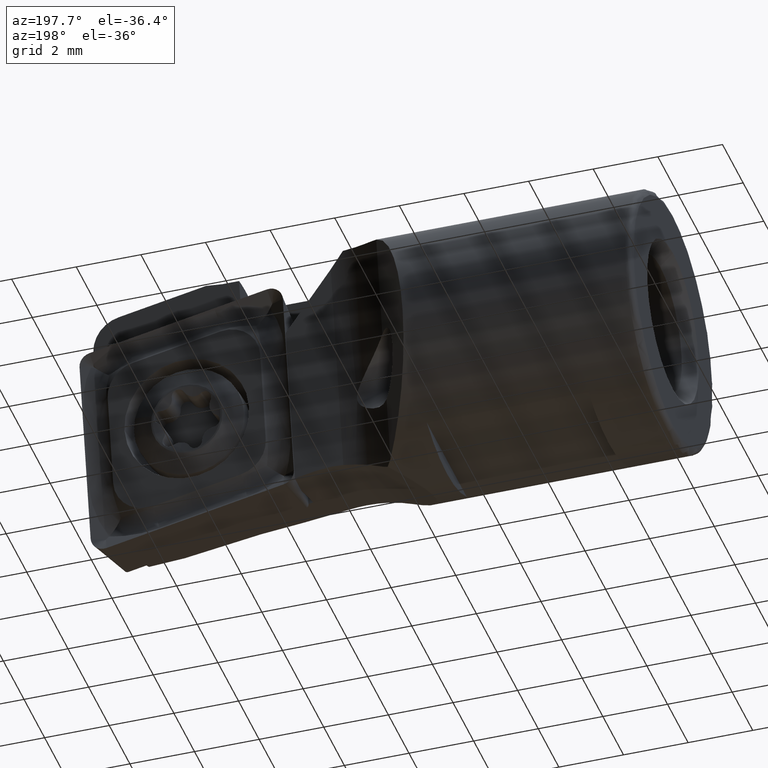
[diagram: clean part render]
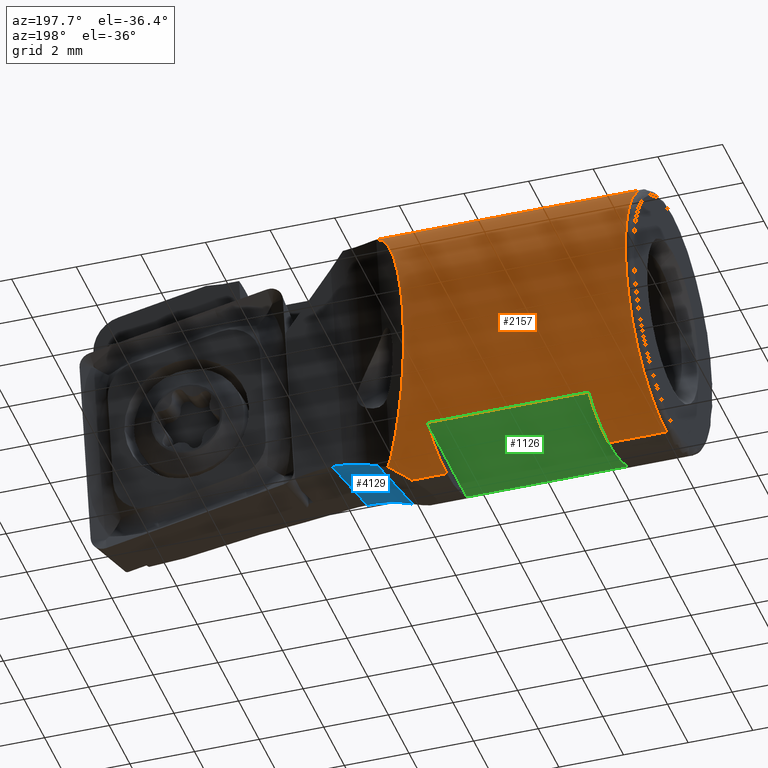
[diagram: same view with three faces highlighted in distinct colors, each labeled with its STEP entity id]
A machine part, auxiliary view with three faces highlighted in distinct colors.
Their STEP definitions:

[orange] entity #2157 — the highlighted cylindrical surface (partial cylindrical patch) has radius 4 mm, axis along (-1, -0, -0).
#5 = VECTOR ( 'NONE', #1112, 1000.000000000000000 ) ;
#50 = CARTESIAN_POINT ( 'NONE',  ( -8.541488726290026500, 1.584551225564466900, 8.048252546757066000 ) ) ;
#72 = ORIENTED_EDGE ( 'NONE', *, *, #2455, .F. ) ;
#90 = DIRECTION ( 'NONE',  ( -1.000000000000000000, -0.0000000000000000000, -0.0000000000000000000 ) ) ;
#100 = CYLINDRICAL_SURFACE ( 'NONE', #2643, 4.000000000000000000 ) ;
#119 = EDGE_CURVE ( 'NONE', #3015, #1419, #3975, .T. ) ;
#125 = CARTESIAN_POINT ( 'NONE',  ( -9.528519790332779800, 0.9244055286453619600, 0.4821495213263568000 ) ) ;
#163 = ORIENTED_EDGE ( 'NONE', *, *, #2752, .T. ) ;
#169 = EDGE_CURVE ( 'NONE', #465, #3715, #443, .T. ) ;
#173 = LINE ( 'NONE', #933, #1978 ) ;
#196 = AXIS2_PLACEMENT_3D ( 'NONE', #462, #2629, #2276 ) ;
#215 = EDGE_CURVE ( 'NONE', #755, #3439, #2554, .T. ) ;
#292 = EDGE_CURVE ( 'NONE', #922, #520, #1542, .T. ) ;
#304 = ORIENTED_EDGE ( 'NONE', *, *, #2400, .T. ) ;
#334 = CARTESIAN_POINT ( 'NONE',  ( -21.56769568915706300, 4.898587196589411800E-016, 0.3750000000000012200 ) ) ;
#338 = CIRCLE ( 'NONE', #1293, 3.999999999999999100 ) ;
#348 = ORIENTED_EDGE ( 'NONE', *, *, #3585, .T. ) ;
#351 = CARTESIAN_POINT ( 'NONE',  ( -9.577350269189628000, 1.015196035705866000, 0.5059720847366469000 ) ) ;
#413 = CARTESIAN_POINT ( 'NONE',  ( -8.265444257785347300, 1.513703998275543400, 8.077526192426548200 ) ) ;
#443 = B_SPLINE_CURVE_WITH_KNOTS ( 'NONE', 3,
 ( #413, #2584, #50, #771, #3325, #1149, #3682, #1519 ),
 .UNSPECIFIED., .F., .F.,
 ( 4, 2, 2, 4 ),
 ( 0.0004218379646759580900, 0.0008470039615060198000, 0.001272169958336081400, 0.002122501951996204700 ),
 .UNSPECIFIED. ) ;
#462 = CARTESIAN_POINT ( 'NONE',  ( -16.00000000000000000, 0.0000000000000000000, 4.375000000000000000 ) ) ;
#465 = VERTEX_POINT ( 'NONE', #2935 ) ;
#488 = EDGE_CURVE ( 'NONE', #4652, #465, #4565, .T. ) ;
#520 = VERTEX_POINT ( 'NONE', #2880 ) ;
#543 = DIRECTION ( 'NONE',  ( 0.0000000000000000000, 0.0000000000000000000, 1.000000000000000000 ) ) ;
#558 = ORIENTED_EDGE ( 'NONE', *, *, #4132, .F. ) ;
#568 = ORIENTED_EDGE ( 'NONE', *, *, #3528, .F. ) ;
#648 = CARTESIAN_POINT ( 'NONE',  ( -11.00000000000000000, 1.936491673103706700, 0.8750000000000007800 ) ) ;
#669 = ORIENTED_EDGE ( 'NONE', *, *, #215, .T. ) ;
#695 = DIRECTION ( 'NONE',  ( 1.000000000000000000, 0.0000000000000000000, 0.0000000000000000000 ) ) ;
#704 = DIRECTION ( 'NONE',  ( -1.000000000000000000, -0.0000000000000000000, -0.0000000000000000000 ) ) ;
#755 = VERTEX_POINT ( 'NONE', #4095 ) ;
#763 = EDGE_CURVE ( 'NONE', #1343, #755, #3198, .T. ) ;
#771 = CARTESIAN_POINT ( 'NONE',  ( -8.799042644892562500, 1.693812548307690200, 7.999166926328108200 ) ) ;
#827 = CARTESIAN_POINT ( 'NONE',  ( -21.56769568915706300, 1.936491673103708700, 0.8750000000000016700 ) ) ;
#922 = VERTEX_POINT ( 'NONE', #1630 ) ;
#933 = CARTESIAN_POINT ( 'NONE',  ( -21.56769568915706300, 0.0000000000000000000, 8.375000000000000000 ) ) ;
#994 = CARTESIAN_POINT ( 'NONE',  ( -11.00000000000000000, 4.898587196589411800E-016, 0.3750000000000012200 ) ) ;
#1036 = CARTESIAN_POINT ( 'NONE',  ( -11.00000000000000000, 0.0000000000000000000, 4.375000000000000000 ) ) ;
#1059 = CARTESIAN_POINT ( 'NONE',  ( -17.80000000000000100, 0.0000000000000000000, 4.375000000000000000 ) ) ;
#1063 = CARTESIAN_POINT ( 'NONE',  ( -9.617552693066853600, 0.5061121209419069400, 0.3990501233644597700 ) ) ;
#1070 = EDGE_CURVE ( 'NONE', #4652, #2286, #173, .T. ) ;
#1094 =( BOUNDED_CURVE ( )  B_SPLINE_CURVE ( 3, ( #1779, #3240, #2520, #351 ),
 .UNSPECIFIED., .F., .F. ) 
 B_SPLINE_CURVE_WITH_KNOTS ( ( 4, 4 ),
 ( 5.160981052338680500, 7.405389562020491900 ),
 .UNSPECIFIED. ) 
 CURVE ( )  GEOMETRIC_REPRESENTATION_ITEM ( )  RATIONAL_B_SPLINE_CURVE ( ( 1.000000000000000000, 0.6224648924620673800, 0.6224648924620673800, 1.000000000000000000 ) ) 
 REPRESENTATION_ITEM ( '' )  );
#1110 = LINE ( 'NONE', #3961, #1969 ) ;
#1112 = DIRECTION ( 'NONE',  ( -1.000000000000000000, -0.0000000000000000000, -0.0000000000000000000 ) ) ;
#1135 = CARTESIAN_POINT ( 'NONE',  ( -9.577350269189628000, 2.390636740694583700, 7.582001087315246600 ) ) ;
#1149 = CARTESIAN_POINT ( 'NONE',  ( -9.260942746708954200, 1.993253258803602700, 7.847394295896007700 ) ) ;
#1165 = CARTESIAN_POINT ( 'NONE',  ( -11.00000000000000000, 0.0000000000000000000, 4.375000000000000000 ) ) ;
#1168 = VERTEX_POINT ( 'NONE', #2465 ) ;
#1174 = VECTOR ( 'NONE', #1768, 1000.000000000000000 ) ;
#1182 = VERTEX_POINT ( 'NONE', #1392 ) ;
#1217 = CARTESIAN_POINT ( 'NONE',  ( -9.411353647752420700, 0.7551785182264511000, 0.4469336301929299800 ) ) ;
#1235 = CIRCLE ( 'NONE', #2549, 3.999999999999999100 ) ;
#1243 = VECTOR ( 'NONE', #3779, 1000.000000000000000 ) ;
#1293 = AXIS2_PLACEMENT_3D ( 'NONE', #1165, #3695, #1532 ) ;
#1294 = LINE ( 'NONE', #334, #1174 ) ;
#1343 = VERTEX_POINT ( 'NONE', #2330 ) ;
#1392 = CARTESIAN_POINT ( 'NONE',  ( -11.00000000000000000, 1.936491673103708700, 7.874999999999998200 ) ) ;
#1418 = DIRECTION ( 'NONE',  ( 0.0000000000000000000, 0.0000000000000000000, 1.000000000000000000 ) ) ;
#1419 = VERTEX_POINT ( 'NONE', #3084 ) ;
#1433 = DIRECTION ( 'NONE',  ( 0.0000000000000000000, 0.0000000000000000000, -1.000000000000000000 ) ) ;
#1462 = CARTESIAN_POINT ( 'NONE',  ( -8.265444257785347300, 1.513703998275543400, 8.077526192426548200 ) ) ;
#1511 = CARTESIAN_POINT ( 'NONE',  ( -9.786165180844827600, 0.2536274836891619900, 0.3750000000000012800 ) ) ;
#1519 = CARTESIAN_POINT ( 'NONE',  ( -9.577350269189628000, 2.390636740694583700, 7.582001087315246600 ) ) ;
#1532 = DIRECTION ( 'NONE',  ( 0.0000000000000000000, 0.0000000000000000000, -1.000000000000000000 ) ) ;
#1542 = B_SPLINE_CURVE_WITH_KNOTS ( 'NONE', 3,
 ( #3389, #125, #4460, #1217 ),
 .UNSPECIFIED., .F., .F.,
 ( 4, 4 ),
 ( 8.940560153363745000E-019, 0.0003129144341277536200 ),
 .UNSPECIFIED. ) ;
#1563 = CIRCLE ( 'NONE', #1924, 4.000000000000000000 ) ;
#1599 = EDGE_CURVE ( 'NONE', #2339, #1343, #2199, .T. ) ;
#1630 = CARTESIAN_POINT ( 'NONE',  ( -9.577350269189628000, 1.015196035705866000, 0.5059720847366469000 ) ) ;
#1768 = DIRECTION ( 'NONE',  ( -1.000000000000000000, -0.0000000000000000000, -0.0000000000000000000 ) ) ;
#1779 = CARTESIAN_POINT ( 'NONE',  ( -9.577350269189628000, 2.390636740694583700, 7.582001087315246600 ) ) ;
#1794 = CARTESIAN_POINT ( 'NONE',  ( -9.411353647752420700, 0.7551785182264511000, 0.4469336301929299800 ) ) ;
#1834 = CARTESIAN_POINT ( 'NONE',  ( -8.268112625381736100, 0.0000000000000000000, 8.375000000000000000 ) ) ;
#1924 = AXIS2_PLACEMENT_3D ( 'NONE', #1036, #3589, #1418 ) ;
#1926 = EDGE_CURVE ( 'NONE', #4411, #2339, #338, .T. ) ;
#1969 = VECTOR ( 'NONE', #704, 1000.000000000000000 ) ;
#1978 = VECTOR ( 'NONE', #3474, 1000.000000000000000 ) ;
#1999 = DIRECTION ( 'NONE',  ( -1.000000000000000000, -0.0000000000000000000, -0.0000000000000000000 ) ) ;
#2085 = VERTEX_POINT ( 'NONE', #2303 ) ;
#2116 = ORIENTED_EDGE ( 'NONE', *, *, #169, .T. ) ;
#2140 = FACE_OUTER_BOUND ( 'NONE', #3571, .T. ) ;
#2157 = ADVANCED_FACE ( 'NONE', ( #2140 ), #100, .T. ) ;
#2188 = CARTESIAN_POINT ( 'NONE',  ( -8.351486257681777700, 0.5207344948550419700, 8.375000000000000000 ) ) ;
#2189 = ORIENTED_EDGE ( 'NONE', *, *, #1070, .F. ) ;
#2199 = LINE ( 'NONE', #827, #1243 ) ;
#2276 = DIRECTION ( 'NONE',  ( 0.0000000000000000000, 0.0000000000000000000, 1.000000000000000000 ) ) ;
#2286 = VERTEX_POINT ( 'NONE', #4254 ) ;
#2303 = CARTESIAN_POINT ( 'NONE',  ( -16.00000000000000000, 1.936491673103705000, 7.875000000000000000 ) ) ;
#2330 = CARTESIAN_POINT ( 'NONE',  ( -16.00000000000000000, 1.936491673103708700, 0.8750000000000025500 ) ) ;
#2339 = VERTEX_POINT ( 'NONE', #648 ) ;
#2400 = EDGE_CURVE ( 'NONE', #3439, #1419, #1235, .T. ) ;
#2445 = AXIS2_PLACEMENT_3D ( 'NONE', #2864, #695, #3241 ) ;
#2455 = EDGE_CURVE ( 'NONE', #1182, #2085, #1110, .T. ) ;
#2465 = CARTESIAN_POINT ( 'NONE',  ( -9.915671574023639000, 4.898587196589411800E-016, 0.3750000000000012200 ) ) ;
#2475 = ORIENTED_EDGE ( 'NONE', *, *, #292, .T. ) ;
#2520 = CARTESIAN_POINT ( 'NONE',  ( -11.58551495070094700, 4.748976534355358900, 1.485680487839968500 ) ) ;
#2526 = CIRCLE ( 'NONE', #2445, 3.999999999999999100 ) ;
#2549 = AXIS2_PLACEMENT_3D ( 'NONE', #1059, #3602, #1433 ) ;
#2554 = LINE ( 'NONE', #4414, #3639 ) ;
#2567 = ORIENTED_EDGE ( 'NONE', *, *, #488, .T. ) ;
#2584 = CARTESIAN_POINT ( 'NONE',  ( -8.404043042440958900, 1.541808283071034200, 8.066036316041440600 ) ) ;
#2629 = DIRECTION ( 'NONE',  ( -1.000000000000000000, 0.0000000000000000000, 0.0000000000000000000 ) ) ;
#2643 = AXIS2_PLACEMENT_3D ( 'NONE', #4524, #1999, #543 ) ;
#2752 = EDGE_CURVE ( 'NONE', #1168, #4411, #1294, .T. ) ;
#2817 = ORIENTED_EDGE ( 'NONE', *, *, #4540, .T. ) ;
#2864 = CARTESIAN_POINT ( 'NONE',  ( -16.00000000000000000, 0.0000000000000000000, 4.375000000000000000 ) ) ;
#2880 = CARTESIAN_POINT ( 'NONE',  ( -9.411353647752420700, 0.7551785182264511000, 0.4469336301929299800 ) ) ;
#2935 = CARTESIAN_POINT ( 'NONE',  ( -8.265444257785347300, 1.513703998275543400, 8.077526192426548200 ) ) ;
#2987 = CARTESIAN_POINT ( 'NONE',  ( -16.00000000000000000, 0.0000000000000000000, 8.375000000000000000 ) ) ;
#3015 = VERTEX_POINT ( 'NONE', #2987 ) ;
#3084 = CARTESIAN_POINT ( 'NONE',  ( -17.80000000000000100, 0.0000000000000000000, 8.375000000000000000 ) ) ;
#3146 = ORIENTED_EDGE ( 'NONE', *, *, #119, .F. ) ;
#3198 = CIRCLE ( 'NONE', #196, 4.000000000000000000 ) ;
#3240 = CARTESIAN_POINT ( 'NONE',  ( -11.58551495070094700, 5.485532508111225200, 5.274932480612562800 ) ) ;
#3241 = DIRECTION ( 'NONE',  ( 0.0000000000000000000, 0.0000000000000000000, -1.000000000000000000 ) ) ;
#3290 = CARTESIAN_POINT ( 'NONE',  ( -21.56769568915706300, 0.0000000000000000000, 8.375000000000000000 ) ) ;
#3325 = CARTESIAN_POINT ( 'NONE',  ( -8.920310374971432300, 1.760273012824033400, 7.967921387297469200 ) ) ;
#3373 =( BOUNDED_CURVE ( )  B_SPLINE_CURVE ( 3, ( #1794, #1063, #1511, #4035 ),
 .UNSPECIFIED., .F., .F. ) 
 B_SPLINE_CURVE_WITH_KNOTS ( ( 4, 4 ),
 ( 5.793183065397907500, 5.983117622690821600 ),
 .UNSPECIFIED. ) 
 CURVE ( )  GEOMETRIC_REPRESENTATION_ITEM ( )  RATIONAL_B_SPLINE_CURVE ( ( 1.000000000000000000, 0.9969959973848441200, 0.9969959973848441200, 1.000000000000000000 ) ) 
 REPRESENTATION_ITEM ( '' )  );
#3389 = CARTESIAN_POINT ( 'NONE',  ( -9.577350269189628000, 1.015196035705866000, 0.5059720847366469000 ) ) ;
#3439 = VERTEX_POINT ( 'NONE', #3565 ) ;
#3474 = DIRECTION ( 'NONE',  ( -1.000000000000000000, -0.0000000000000000000, -0.0000000000000000000 ) ) ;
#3528 = EDGE_CURVE ( 'NONE', #2085, #3015, #2526, .T. ) ;
#3558 = ORIENTED_EDGE ( 'NONE', *, *, #1926, .T. ) ;
#3565 = CARTESIAN_POINT ( 'NONE',  ( -17.80000000000000100, 4.898587196589411800E-016, 0.3750000000000012200 ) ) ;
#3571 = EDGE_LOOP ( 'NONE', ( #348, #163, #3558, #3864, #4242, #669, #304, #3146, #568, #72, #558, #2189, #2567, #2116, #2817, #2475 ) ) ;
#3585 = EDGE_CURVE ( 'NONE', #520, #1168, #3373, .T. ) ;
#3589 = DIRECTION ( 'NONE',  ( -1.000000000000000000, 0.0000000000000000000, 0.0000000000000000000 ) ) ;
#3602 = DIRECTION ( 'NONE',  ( 1.000000000000000000, 0.0000000000000000000, 0.0000000000000000000 ) ) ;
#3639 = VECTOR ( 'NONE', #90, 1000.000000000000000 ) ;
#3682 = CARTESIAN_POINT ( 'NONE',  ( -9.444630180837521000, 2.186094332656958600, 7.734475808206065400 ) ) ;
#3695 = DIRECTION ( 'NONE',  ( 1.000000000000000000, 0.0000000000000000000, 0.0000000000000000000 ) ) ;
#3715 = VERTEX_POINT ( 'NONE', #1135 ) ;
#3779 = DIRECTION ( 'NONE',  ( -1.000000000000000000, -0.0000000000000000000, -0.0000000000000000000 ) ) ;
#3864 = ORIENTED_EDGE ( 'NONE', *, *, #1599, .T. ) ;
#3961 = CARTESIAN_POINT ( 'NONE',  ( -21.56769568915706300, 1.936491673103707000, 7.875000000000000000 ) ) ;
#3975 = LINE ( 'NONE', #3290, #5 ) ;
#3991 = CARTESIAN_POINT ( 'NONE',  ( -8.350585531792070500, 1.031695721650341700, 8.274585664152066800 ) ) ;
#4035 = CARTESIAN_POINT ( 'NONE',  ( -9.915671574023639000, 4.898587196589411800E-016, 0.3750000000000012200 ) ) ;
#4038 = CARTESIAN_POINT ( 'NONE',  ( -8.268112625381736100, 0.0000000000000000000, 8.375000000000000000 ) ) ;
#4095 = CARTESIAN_POINT ( 'NONE',  ( -16.00000000000000000, 4.898587196589411800E-016, 0.3750000000000012200 ) ) ;
#4132 = EDGE_CURVE ( 'NONE', #2286, #1182, #1563, .T. ) ;
#4242 = ORIENTED_EDGE ( 'NONE', *, *, #763, .T. ) ;
#4254 = CARTESIAN_POINT ( 'NONE',  ( -11.00000000000000000, 0.0000000000000000000, 8.375000000000000000 ) ) ;
#4411 = VERTEX_POINT ( 'NONE', #994 ) ;
#4414 = CARTESIAN_POINT ( 'NONE',  ( -21.56769568915706300, 4.898587196589411800E-016, 0.3750000000000012200 ) ) ;
#4460 = CARTESIAN_POINT ( 'NONE',  ( -9.473242200115283400, 0.8376301811229206500, 0.4627851252415028900 ) ) ;
#4524 = CARTESIAN_POINT ( 'NONE',  ( -21.56769568915706300, 0.0000000000000000000, 4.375000000000000000 ) ) ;
#4540 = EDGE_CURVE ( 'NONE', #3715, #922, #1094, .T. ) ;
#4565 =( BOUNDED_CURVE ( )  B_SPLINE_CURVE ( 3, ( #1834, #2188, #3991, #1462 ),
 .UNSPECIFIED., .F., .F. ) 
 B_SPLINE_CURVE_WITH_KNOTS ( ( 4, 4 ),
 ( 6.091199089460205900, 6.479294332532593800 ),
 .UNSPECIFIED. ) 
 CURVE ( )  GEOMETRIC_REPRESENTATION_ITEM ( )  RATIONAL_B_SPLINE_CURVE ( ( 1.000000000000000000, 0.9874878424529104400, 0.9874878424529104400, 1.000000000000000000 ) ) 
 REPRESENTATION_ITEM ( '' )  );
#4652 = VERTEX_POINT ( 'NONE', #4038 ) ;

[blue] entity #4129 — the highlighted cylindrical surface (partial cylindrical patch) has radius 3 mm, axis along (-0.0212, 0.9514, -0.3072).
#139 = ORIENTED_EDGE ( 'NONE', *, *, #4040, .F. ) ;
#221 = CARTESIAN_POINT ( 'NONE',  ( -8.358874925335340900, -3.423407742605312000, 2.305394279240663600 ) ) ;
#494 = CARTESIAN_POINT ( 'NONE',  ( -8.669041364874850300, 0.2668900151121900700, 1.028373566218727400 ) ) ;
#580 = CARTESIAN_POINT ( 'NONE',  ( -7.966441640982232300, -3.498674169502768500, 2.435911897533658400 ) ) ;
#599 = CYLINDRICAL_SURFACE ( 'NONE', #2169, 3.000000000000000900 ) ;
#702 = CARTESIAN_POINT ( 'NONE',  ( -7.491893882698366100, 0.1523970347639819200, 1.308099083633769800 ) ) ;
#832 = ORIENTED_EDGE ( 'NONE', *, *, #3488, .T. ) ;
#851 = CARTESIAN_POINT ( 'NONE',  ( -9.004468125924844900, 0.4296131927774733400, 0.7942210527995029500 ) ) ;
#867 = EDGE_CURVE ( 'NONE', #1398, #2941, #1668, .T. ) ;
#932 = CARTESIAN_POINT ( 'NONE',  ( -7.549714062706769400, -3.532154934245764500, 2.497799552396363400 ) ) ;
#939 = CARTESIAN_POINT ( 'NONE',  ( -7.610020444682503700, 0.1523970347639825900, 1.308099083633769600 ) ) ;
#956 = CARTESIAN_POINT ( 'NONE',  ( -7.348991014397428900, -6.272169957400439700, 3.382519644521909500 ) ) ;
#1120 =( BOUNDED_CURVE ( )  B_SPLINE_CURVE ( 3, ( #3492, #939, #3851, #1679 ),
 .UNSPECIFIED., .F., .F. ) 
 B_SPLINE_CURVE_WITH_KNOTS ( ( 4, 4 ),
 ( 3.314850609774584900, 3.432882151177352600 ),
 .UNSPECIFIED. ) 
 CURVE ( )  GEOMETRIC_REPRESENTATION_ITEM ( )  RATIONAL_B_SPLINE_CURVE ( ( 1.000000000000000000, 0.9988393831837819600, 0.9988393831837819600, 1.000000000000000000 ) ) 
 REPRESENTATION_ITEM ( '' )  );
#1216 = CARTESIAN_POINT ( 'NONE',  ( -8.275331019625474100, 0.1681885691532764300, 1.201670924136602400 ) ) ;
#1329 = ORIENTED_EDGE ( 'NONE', *, *, #4331, .F. ) ;
#1398 = VERTEX_POINT ( 'NONE', #2724 ) ;
#1658 = CARTESIAN_POINT ( 'NONE',  ( -8.823342738731785300, -3.251348050562967700, 2.042902535821336900 ) ) ;
#1668 = B_SPLINE_CURVE_WITH_KNOTS ( 'NONE', 3,
 ( #2663, #1936, #1216, #494, #3031, #851 ),
 .UNSPECIFIED., .F., .F.,
 ( 4, 2, 4 ),
 ( 0.0000000000000000000, 0.0006539594288406122900, 0.001307918857681224600 ),
 .UNSPECIFIED. ) ;
#1679 = CARTESIAN_POINT ( 'NONE',  ( -7.845299461620745000, 0.1483852832350356900, 1.287460411194449900 ) ) ;
#1784 = VERTEX_POINT ( 'NONE', #3166 ) ;
#1936 = CARTESIAN_POINT ( 'NONE',  ( -8.065543830806284100, 0.1433682371904365400, 1.261649946817399800 ) ) ;
#2130 = CARTESIAN_POINT ( 'NONE',  ( -8.851965596800941000, -6.426531309289220700, 3.007993146833780200 ) ) ;
#2169 = AXIS2_PLACEMENT_3D ( 'NONE', #3896, #3576, #3924 ) ;
#2370 = VECTOR ( 'NONE', #3519, 999.9999999999998900 ) ;
#2393 = CARTESIAN_POINT ( 'NONE',  ( -8.483809945331833200, -3.387999158555655900, 2.247185227918193200 ) ) ;
#2654 = ORIENTED_EDGE ( 'NONE', *, *, #3362, .F. ) ;
#2663 = CARTESIAN_POINT ( 'NONE',  ( -7.845299461620745000, 0.1483852832350356900, 1.287460411194449900 ) ) ;
#2724 = CARTESIAN_POINT ( 'NONE',  ( -7.845299461620745000, 0.1483852832350356900, 1.287460411194449900 ) ) ;
#2745 = CARTESIAN_POINT ( 'NONE',  ( -8.099830943349649800, -3.478687510297845600, 2.399722394895453800 ) ) ;
#2785 = B_SPLINE_CURVE_WITH_KNOTS ( 'NONE', 3,
 ( #3455, #1658, #4561, #2393, #221, #2745, #580, #3117, #932, #3483 ),
 .UNSPECIFIED., .F., .F.,
 ( 4, 2, 2, 2, 4 ),
 ( 4.336808689942017300E-019, 0.0004191388911381683500, 0.0008382777822763362800, 0.001257416673414504200, 0.001676555564552672100 ),
 .UNSPECIFIED. ) ;
#2941 = VERTEX_POINT ( 'NONE', #4055 ) ;
#3031 = CARTESIAN_POINT ( 'NONE',  ( -8.845798059145082000, 0.3388019592695452600, 0.9184658381367149000 ) ) ;
#3054 = CARTESIAN_POINT ( 'NONE',  ( -8.923929026965293300, -3.191229711960828400, 1.963350579893838700 ) ) ;
#3117 = CARTESIAN_POINT ( 'NONE',  ( -7.691912667579660300, -3.525470696640055300, 2.485068789451665900 ) ) ;
#3129 = VERTEX_POINT ( 'NONE', #3054 ) ;
#3166 = CARTESIAN_POINT ( 'NONE',  ( -7.409937690877574000, -3.532154934245763200, 2.497799552396363000 ) ) ;
#3362 = EDGE_CURVE ( 'NONE', #1784, #4160, #4052, .T. ) ;
#3455 = CARTESIAN_POINT ( 'NONE',  ( -8.923929026965293300, -3.191229711960828400, 1.963350579893838700 ) ) ;
#3483 = CARTESIAN_POINT ( 'NONE',  ( -7.409937690877574000, -3.532154934245763200, 2.497799552396363000 ) ) ;
#3488 = EDGE_CURVE ( 'NONE', #3129, #2941, #4575, .T. ) ;
#3492 = CARTESIAN_POINT ( 'NONE',  ( -7.491893882698366100, 0.1523970347639819200, 1.308099083633769800 ) ) ;
#3519 = DIRECTION ( 'NONE',  ( -0.02116238939576957400, 0.9514097932665446200, -0.3071995419130255100 ) ) ;
#3576 = DIRECTION ( 'NONE',  ( -0.02116238939576957700, 0.9514097932665446200, -0.3071995419130255600 ) ) ;
#3611 = VECTOR ( 'NONE', #3933, 999.9999999999998900 ) ;
#3851 = CARTESIAN_POINT ( 'NONE',  ( -7.727959186009763400, 0.1510582304154929300, 1.301211532346148800 ) ) ;
#3896 = CARTESIAN_POINT ( 'NONE',  ( -7.348991014397428900, -7.193975019944262300, 0.5276509213283924200 ) ) ;
#3924 = DIRECTION ( 'NONE',  ( 0.0000000000000000000, 0.3072683541812741800, 0.9516229077311720900 ) ) ;
#3933 = DIRECTION ( 'NONE',  ( -0.02116238939576957400, 0.9514097932665446200, -0.3071995419130255100 ) ) ;
#4040 = EDGE_CURVE ( 'NONE', #4160, #1398, #1120, .T. ) ;
#4052 = LINE ( 'NONE', #956, #2370 ) ;
#4055 = CARTESIAN_POINT ( 'NONE',  ( -9.004468125924844900, 0.4296131927774733400, 0.7942210527995029500 ) ) ;
#4129 = ADVANCED_FACE ( 'NONE', ( #4446 ), #599, .F. ) ;
#4160 = VERTEX_POINT ( 'NONE', #702 ) ;
#4331 = EDGE_CURVE ( 'NONE', #3129, #1784, #2785, .T. ) ;
#4400 = ORIENTED_EDGE ( 'NONE', *, *, #867, .F. ) ;
#4446 = FACE_OUTER_BOUND ( 'NONE', #4657, .T. ) ;
#4561 = CARTESIAN_POINT ( 'NONE',  ( -8.715317721974976500, -3.302109244710361000, 2.116193116120424400 ) ) ;
#4575 = LINE ( 'NONE', #2130, #3611 ) ;
#4657 = EDGE_LOOP ( 'NONE', ( #2654, #1329, #832, #4400, #139 ) ) ;

[green] entity #1126 — the highlighted planar face has unit normal (0, 0, 1).
#161 = LINE ( 'NONE', #1422, #3895 ) ;
#175 = ORIENTED_EDGE ( 'NONE', *, *, #2437, .F. ) ;
#227 = CARTESIAN_POINT ( 'NONE',  ( -11.00000000000000000, -4.150000000000000400, 0.8750000000000007800 ) ) ;
#330 = DIRECTION ( 'NONE',  ( -0.0000000000000000000, 1.000000000000000000, -0.0000000000000000000 ) ) ;
#441 = ORIENTED_EDGE ( 'NONE', *, *, #1599, .F. ) ;
#606 = EDGE_CURVE ( 'NONE', #4225, #1343, #4379, .T. ) ;
#648 = CARTESIAN_POINT ( 'NONE',  ( -11.00000000000000000, 1.936491673103706700, 0.8750000000000007800 ) ) ;
#827 = CARTESIAN_POINT ( 'NONE',  ( -21.56769568915706300, 1.936491673103708700, 0.8750000000000016700 ) ) ;
#885 = ORIENTED_EDGE ( 'NONE', *, *, #1665, .F. ) ;
#1001 = VECTOR ( 'NONE', #2397, 1000.000000000000000 ) ;
#1126 = ADVANCED_FACE ( 'NONE', ( #1759 ), #1716, .F. ) ;
#1243 = VECTOR ( 'NONE', #3779, 1000.000000000000000 ) ;
#1343 = VERTEX_POINT ( 'NONE', #2330 ) ;
#1422 = CARTESIAN_POINT ( 'NONE',  ( -21.56769568915706300, -1.936491673103708700, 0.8750000000000016700 ) ) ;
#1573 = VERTEX_POINT ( 'NONE', #2984 ) ;
#1599 = EDGE_CURVE ( 'NONE', #2339, #1343, #2199, .T. ) ;
#1665 = EDGE_CURVE ( 'NONE', #1573, #2339, #2922, .T. ) ;
#1716 = PLANE ( 'NONE',  #3254 ) ;
#1759 = FACE_OUTER_BOUND ( 'NONE', #2488, .T. ) ;
#2199 = LINE ( 'NONE', #827, #1243 ) ;
#2330 = CARTESIAN_POINT ( 'NONE',  ( -16.00000000000000000, 1.936491673103708700, 0.8750000000000025500 ) ) ;
#2339 = VERTEX_POINT ( 'NONE', #648 ) ;
#2397 = DIRECTION ( 'NONE',  ( -0.0000000000000000000, 1.000000000000000000, -0.0000000000000000000 ) ) ;
#2437 = EDGE_CURVE ( 'NONE', #4225, #1573, #161, .T. ) ;
#2448 = DIRECTION ( 'NONE',  ( 1.000000000000000000, 0.0000000000000000000, 0.0000000000000000000 ) ) ;
#2488 = EDGE_LOOP ( 'NONE', ( #885, #175, #4380, #441 ) ) ;
#2516 = DIRECTION ( 'NONE',  ( 1.000000000000000000, 0.0000000000000000000, 0.0000000000000000000 ) ) ;
#2559 = VECTOR ( 'NONE', #330, 1000.000000000000000 ) ;
#2922 = LINE ( 'NONE', #227, #1001 ) ;
#2984 = CARTESIAN_POINT ( 'NONE',  ( -11.00000000000000000, -1.936491673103709400, 0.8750000000000007800 ) ) ;
#3254 = AXIS2_PLACEMENT_3D ( 'NONE', #4258, #4616, #2448 ) ;
#3779 = DIRECTION ( 'NONE',  ( -1.000000000000000000, -0.0000000000000000000, -0.0000000000000000000 ) ) ;
#3895 = VECTOR ( 'NONE', #2516, 1000.000000000000000 ) ;
#4225 = VERTEX_POINT ( 'NONE', #4353 ) ;
#4258 = CARTESIAN_POINT ( 'NONE',  ( -16.00000000000000000, -4.150000000000000400, 0.8750000000000007800 ) ) ;
#4308 = CARTESIAN_POINT ( 'NONE',  ( -16.00000000000000000, -4.150000000000000400, 0.8750000000000007800 ) ) ;
#4353 = CARTESIAN_POINT ( 'NONE',  ( -16.00000000000000000, -1.936491673103708700, 0.8750000000000025500 ) ) ;
#4379 = LINE ( 'NONE', #4308, #2559 ) ;
#4380 = ORIENTED_EDGE ( 'NONE', *, *, #606, .T. ) ;
#4616 = DIRECTION ( 'NONE',  ( -0.0000000000000000000, 0.0000000000000000000, 1.000000000000000000 ) ) ;